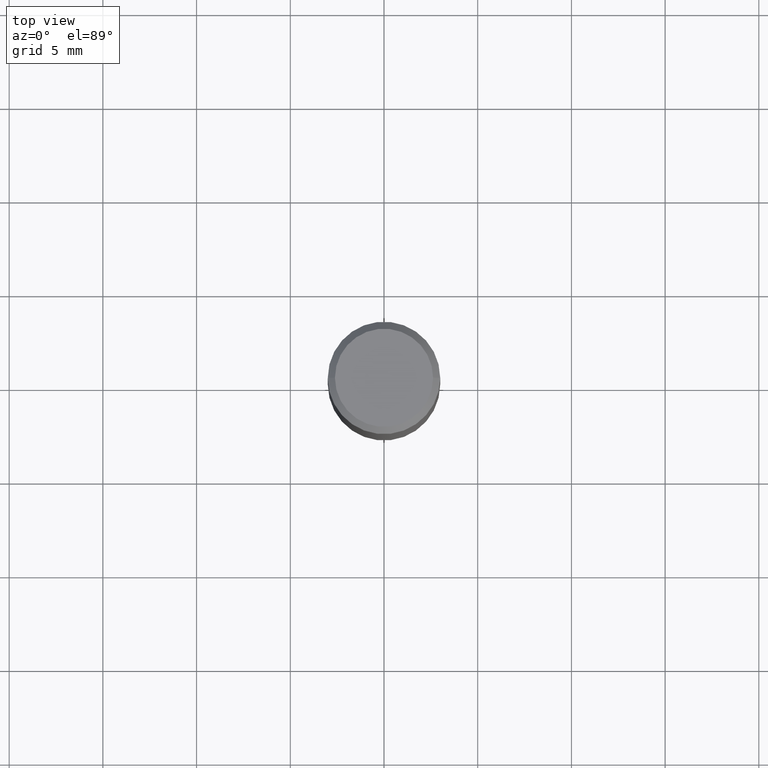
[diagram: clean part render]
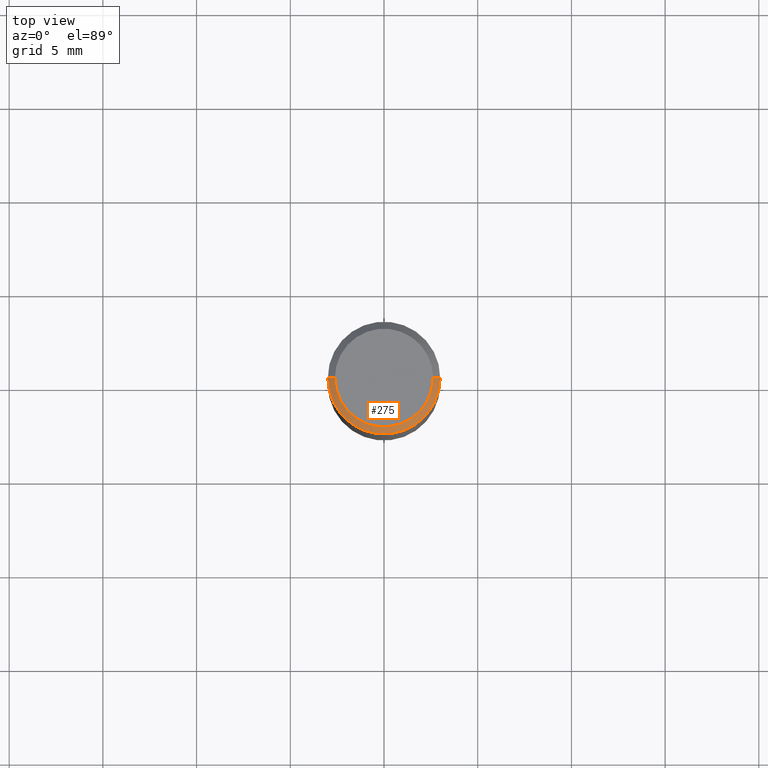
[diagram: same view with one face highlighted and labeled with its STEP entity id]
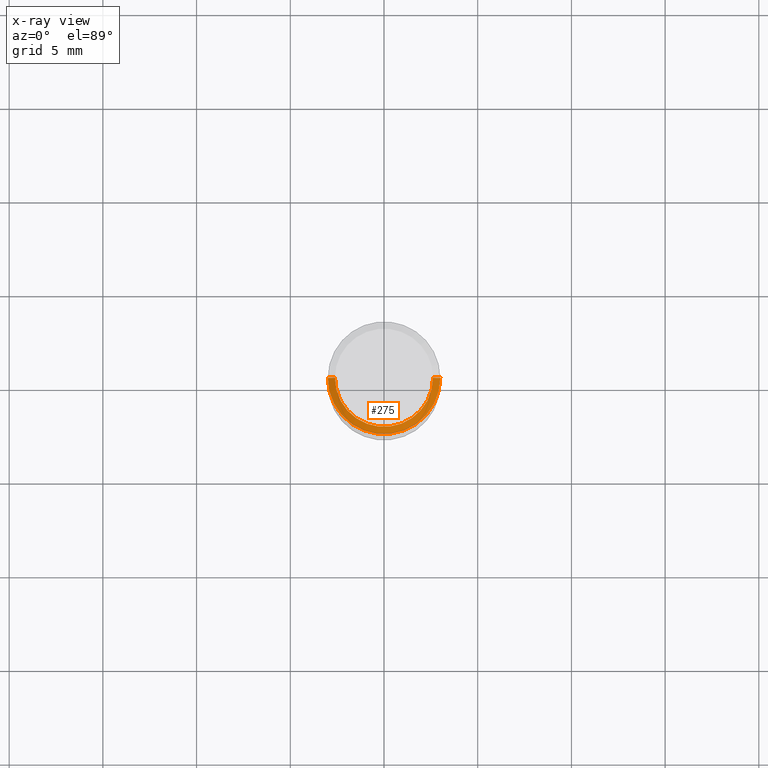
[diagram: x-ray of the same camera — body ghosted, the highlighted face saturated]
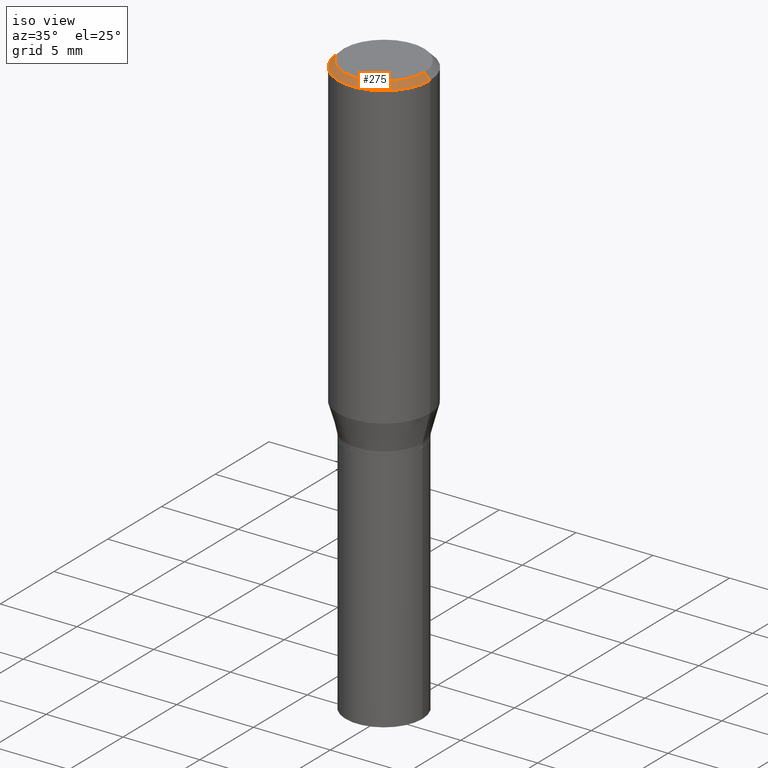
[diagram: same view with one face highlighted and labeled with its STEP entity id]
A machine part, top view. The second image highlights one B-rep face of the part: STEP entity #275.
The next image is the same camera in x-ray: the body ghosted, the highlighted face saturated — about 0% of this face is hidden behind the body in this view.
A second angle (iso view) of the same face is appended — the face is thin or edge-on in the first view.
In plain terms, the highlighted conical surface has half-angle 45 deg.
Its self-contained STEP definition (entity closure, byte-faithful):
#1 = CARTESIAN_POINT ( 'NONE',  ( 3.668203209277705088E-31, -5.237222008264718399E-17, -0.01499999999999999944 ) ) ;
#26 = DIRECTION ( 'NONE',  ( -1.000000000000000000, 6.982962677686266711E-15, 0.000000000000000000 ) ) ;
#36 = CIRCLE ( 'NONE', #444, 0.1031000000000000111 ) ;
#37 = CARTESIAN_POINT ( 'NONE',  ( 4.647400995173613138E-45, -6.635256932220833331E-31, -1.900413116462290932E-16 ) ) ;
#38 = VERTEX_POINT ( 'NONE', #82 ) ;
#40 = VERTEX_POINT ( 'NONE', #52 ) ;
#52 = CARTESIAN_POINT ( 'NONE',  ( -0.1180999999999999966, -5.605231488820216014E-16, -0.01499999999999999944 ) ) ;
#56 = CARTESIAN_POINT ( 'NONE',  ( 0.1180999999999999966, -8.625970336194650129E-16, -0.01499999999999999944 ) ) ;
#61 = CIRCLE ( 'NONE', #269, 0.1180999999999999966 ) ;
#71 = EDGE_CURVE ( 'NONE', #38, #175, #155, .T. ) ;
#82 = CARTESIAN_POINT ( 'NONE',  ( 0.1031000000000000111, -7.849571885948552706E-16, -1.900413116462238423E-16 ) ) ;
#96 = DIRECTION ( 'NONE',  ( -0.7071067811865516806, 2.468850131082300842E-15, -0.7071067811865431318 ) ) ;
#99 = CONICAL_SURFACE ( 'NONE', #396, 0.1180999999999999966, 0.7853981633974543852 ) ;
#113 = DIRECTION ( 'NONE',  ( 1.000000000000000000, -6.982962677686266711E-15, 0.000000000000000000 ) ) ;
#129 = CARTESIAN_POINT ( 'NONE',  ( -0.1180999999999999966, 7.723156721521009862E-16, -0.01499999999999999944 ) ) ;
#155 = LINE ( 'NONE', #56, #204 ) ;
#165 = CARTESIAN_POINT ( 'NONE',  ( 0.1180999999999999966, -8.770601123173952432E-16, -0.01499999999999999944 ) ) ;
#167 = FACE_OUTER_BOUND ( 'NONE', #324, .T. ) ;
#175 = VERTEX_POINT ( 'NONE', #165 ) ;
#180 = DIRECTION ( 'NONE',  ( -2.445468806185136597E-29, 3.491481338843145583E-15, 1.000000000000000000 ) ) ;
#185 = VERTEX_POINT ( 'NONE', #201 ) ;
#197 = ORIENTED_EDGE ( 'NONE', *, *, #325, .F. ) ;
#199 = CARTESIAN_POINT ( 'NONE',  ( 3.668203209277705088E-31, -5.237222008264718399E-17, -0.01499999999999999944 ) ) ;
#201 = CARTESIAN_POINT ( 'NONE',  ( -0.1031000000000000111, 7.461295621107772493E-16, -1.900413116462341961E-16 ) ) ;
#204 = VECTOR ( 'NONE', #298, 39.37007874015748854 ) ;
#247 = EDGE_CURVE ( 'NONE', #185, #40, #385, .T. ) ;
#250 = VECTOR ( 'NONE', #96, 39.37007874015748854 ) ;
#269 = AXIS2_PLACEMENT_3D ( 'NONE', #1, #292, #113 ) ;
#275 = ADVANCED_FACE ( 'NONE', ( #167 ), #99, .T. ) ;
#290 = ORIENTED_EDGE ( 'NONE', *, *, #71, .F. ) ;
#292 = DIRECTION ( 'NONE',  ( -2.445468806185136597E-29, 3.491481338843145583E-15, 1.000000000000000000 ) ) ;
#298 = DIRECTION ( 'NONE',  ( 0.7071067811865516806, -7.319954787623268667E-15, -0.7071067811865431318 ) ) ;
#318 = DIRECTION ( 'NONE',  ( 1.000000000000000000, -6.982962677686265922E-15, 4.883331232093008327E-29 ) ) ;
#324 = EDGE_LOOP ( 'NONE', ( #290, #197, #448, #466 ) ) ;
#325 = EDGE_CURVE ( 'NONE', #185, #38, #36, .T. ) ;
#338 = EDGE_CURVE ( 'NONE', #40, #175, #61, .T. ) ;
#350 = DIRECTION ( 'NONE',  ( 2.445468806185136597E-29, -3.491481338843145583E-15, -1.000000000000000000 ) ) ;
#385 = LINE ( 'NONE', #129, #250 ) ;
#396 = AXIS2_PLACEMENT_3D ( 'NONE', #199, #350, #26 ) ;
#444 = AXIS2_PLACEMENT_3D ( 'NONE', #37, #180, #318 ) ;
#448 = ORIENTED_EDGE ( 'NONE', *, *, #247, .T. ) ;
#466 = ORIENTED_EDGE ( 'NONE', *, *, #338, .T. ) ;